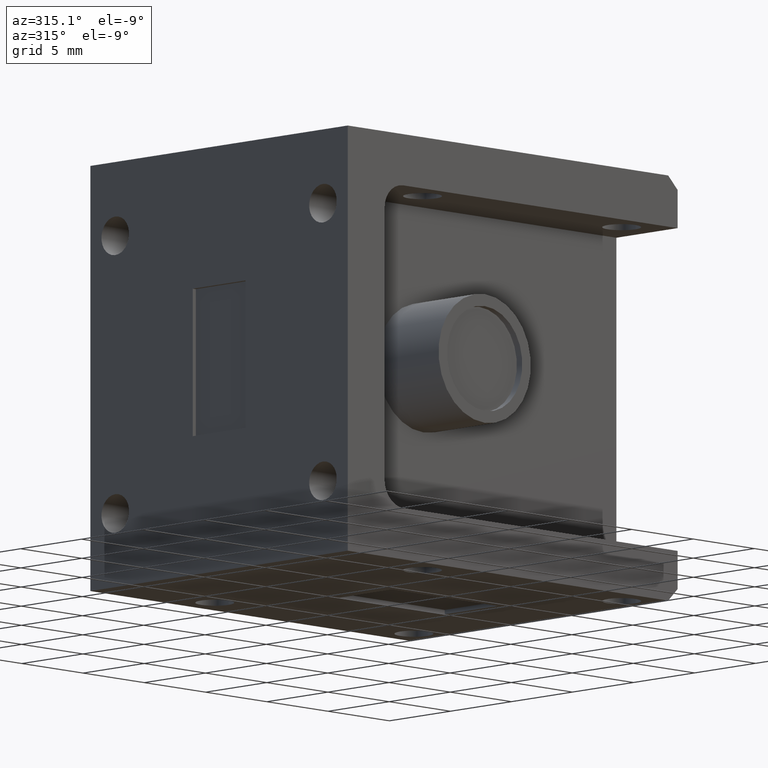
[diagram: clean part render]
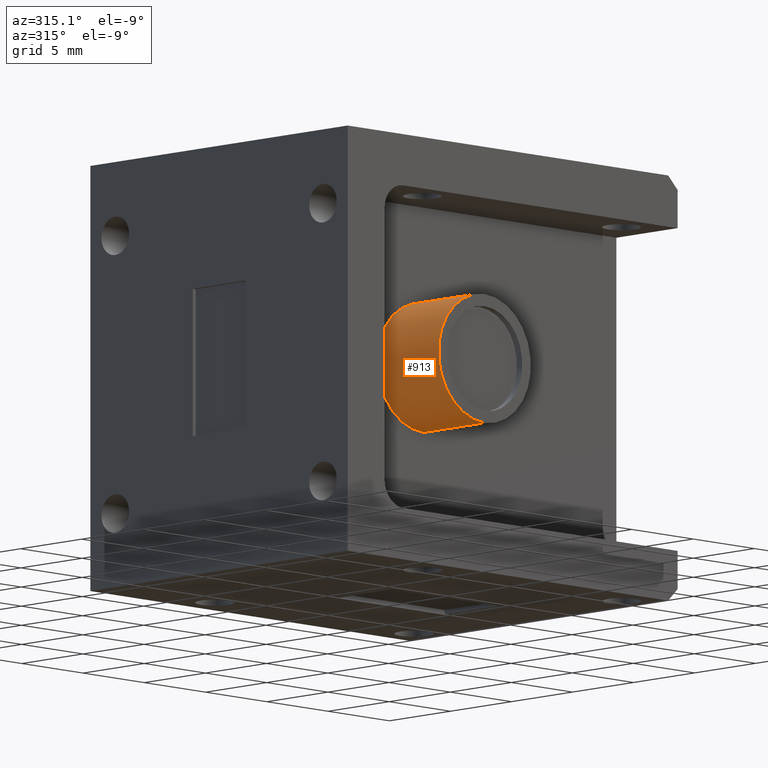
[diagram: same view with one face highlighted and labeled with its STEP entity id]
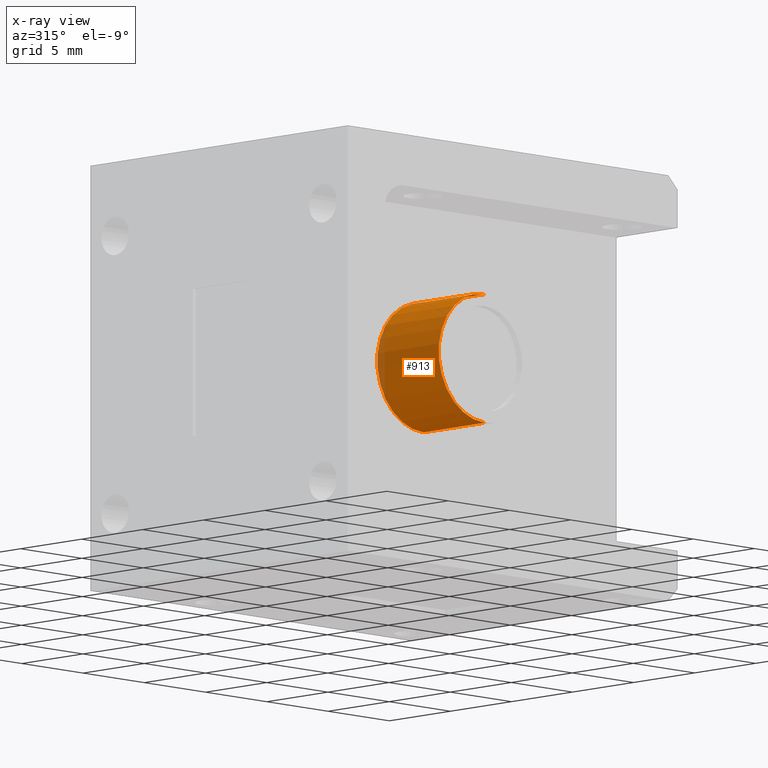
[diagram: x-ray of the same camera — body ghosted, the highlighted face saturated]
A machine part, auxiliary view. The second image highlights one B-rep face of the part: STEP entity #913.
The next image is the same camera in x-ray: the body ghosted, the highlighted face saturated — about 4% of this face is hidden behind the body in this view.
In plain terms, the highlighted cylindrical surface (partial cylindrical patch) has radius 3.7638 mm, axis along (-0, 1, -0).
Its self-contained STEP definition (entity closure, byte-faithful):
#24 = DIRECTION ( 'NONE',  ( -0.0000000000000000000, 1.000000000000000000, -0.0000000000000000000 ) ) ;
#40 = ORIENTED_EDGE ( 'NONE', *, *, #2138, .T. ) ;
#56 = AXIS2_PLACEMENT_3D ( 'NONE', #410, #24, #1769 ) ;
#57 = CARTESIAN_POINT ( 'NONE',  ( -0.08226717110593155500, 0.0000000000000000000, 0.0000000000000000000 ) ) ;
#103 = CARTESIAN_POINT ( 'NONE',  ( -0.08226717110593152700, 0.0000000000000000000, -0.1481824691634355500 ) ) ;
#192 = CARTESIAN_POINT ( 'NONE',  ( -0.08226717110593155500, 0.0000000000000000000, 0.1481824691634355500 ) ) ;
#204 = VECTOR ( 'NONE', #1551, 39.37007874015748100 ) ;
#246 = AXIS2_PLACEMENT_3D ( 'NONE', #57, #2244, #1498 ) ;
#272 = ORIENTED_EDGE ( 'NONE', *, *, #1612, .F. ) ;
#376 = VERTEX_POINT ( 'NONE', #1661 ) ;
#406 = VERTEX_POINT ( 'NONE', #2116 ) ;
#410 = CARTESIAN_POINT ( 'NONE',  ( -0.08226717110593155500, 0.1975000000000000100, 0.0000000000000000000 ) ) ;
#467 = EDGE_CURVE ( 'NONE', #376, #406, #1673, .T. ) ;
#501 = EDGE_LOOP ( 'NONE', ( #272, #40, #1316, #2103 ) ) ;
#565 = CYLINDRICAL_SURFACE ( 'NONE', #1289, 0.1481824691634355500 ) ;
#713 = CARTESIAN_POINT ( 'NONE',  ( -0.08226717110593155500, 0.0000000000000000000, 0.0000000000000000000 ) ) ;
#769 = VECTOR ( 'NONE', #992, 39.37007874015748100 ) ;
#802 = FACE_OUTER_BOUND ( 'NONE', #501, .T. ) ;
#879 = DIRECTION ( 'NONE',  ( -0.0000000000000000000, 1.000000000000000000, -0.0000000000000000000 ) ) ;
#882 = VERTEX_POINT ( 'NONE', #103 ) ;
#913 = ADVANCED_FACE ( 'NONE', ( #802 ), #565, .T. ) ;
#992 = DIRECTION ( 'NONE',  ( -0.0000000000000000000, 1.000000000000000000, -0.0000000000000000000 ) ) ;
#1289 = AXIS2_PLACEMENT_3D ( 'NONE', #713, #879, #2250 ) ;
#1316 = ORIENTED_EDGE ( 'NONE', *, *, #467, .T. ) ;
#1325 = VERTEX_POINT ( 'NONE', #1893 ) ;
#1498 = DIRECTION ( 'NONE',  ( 0.0000000000000000000, 0.0000000000000000000, 1.000000000000000000 ) ) ;
#1507 = EDGE_CURVE ( 'NONE', #1325, #406, #2216, .T. ) ;
#1551 = DIRECTION ( 'NONE',  ( -0.0000000000000000000, 1.000000000000000000, -0.0000000000000000000 ) ) ;
#1612 = EDGE_CURVE ( 'NONE', #882, #1325, #2095, .T. ) ;
#1661 = CARTESIAN_POINT ( 'NONE',  ( -0.08226717110593155500, 0.0000000000000000000, 0.1481824691634355500 ) ) ;
#1673 = LINE ( 'NONE', #192, #204 ) ;
#1769 = DIRECTION ( 'NONE',  ( 0.0000000000000000000, 0.0000000000000000000, 1.000000000000000000 ) ) ;
#1776 = CARTESIAN_POINT ( 'NONE',  ( -0.08226717110593152700, 0.0000000000000000000, -0.1481824691634355500 ) ) ;
#1893 = CARTESIAN_POINT ( 'NONE',  ( -0.08226717110593152700, 0.1975000000000000100, -0.1481824691634355500 ) ) ;
#2095 = LINE ( 'NONE', #1776, #769 ) ;
#2103 = ORIENTED_EDGE ( 'NONE', *, *, #1507, .F. ) ;
#2116 = CARTESIAN_POINT ( 'NONE',  ( -0.08226717110593155500, 0.1975000000000000100, 0.1481824691634355500 ) ) ;
#2138 = EDGE_CURVE ( 'NONE', #882, #376, #2331, .T. ) ;
#2216 = CIRCLE ( 'NONE', #56, 0.1481824691634355500 ) ;
#2244 = DIRECTION ( 'NONE',  ( -0.0000000000000000000, 1.000000000000000000, -0.0000000000000000000 ) ) ;
#2250 = DIRECTION ( 'NONE',  ( 0.0000000000000000000, 0.0000000000000000000, 1.000000000000000000 ) ) ;
#2331 = CIRCLE ( 'NONE', #246, 0.1481824691634355500 ) ;